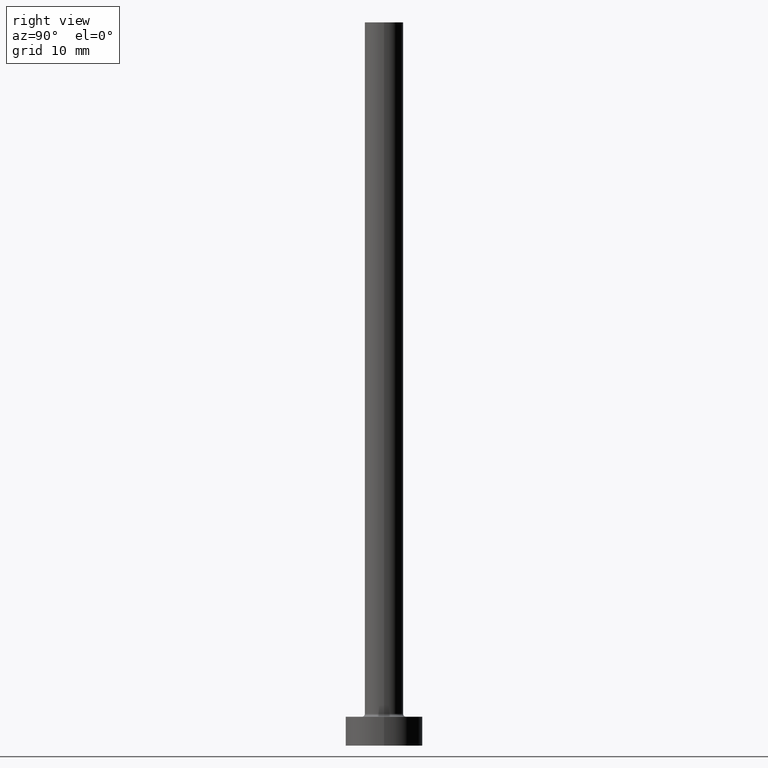
[diagram: clean part render]
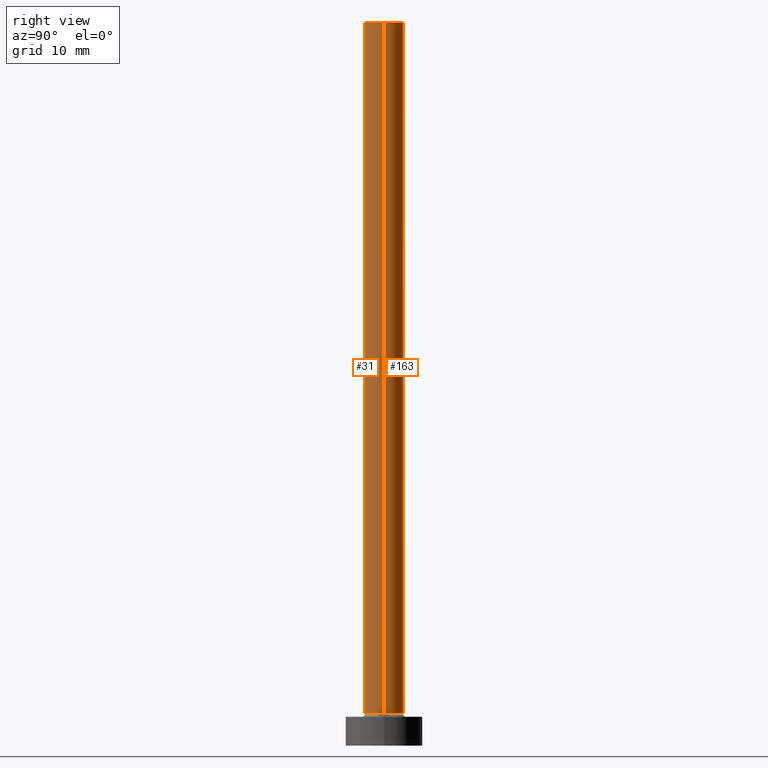
[diagram: same view with one multi-face feature highlighted, each face labeled with its STEP entity id]
A machine part, right view. The highlighted faces form ONE feature: a constant-radius fillet chain: 2 tangent blend faces with common blend radius 2 mm. The faces share edges in the B-rep.
Their STEP definitions:
[1] entity #31 (Cylinder):
#2 = DIRECTION ( 'NONE',  ( -0.000000000000000000, -0.000000000000000000, -1.000000000000000000 ) ) ;
#14 = CARTESIAN_POINT ( 'NONE',  ( 0.000000000000000000, 0.000000000000000000, 3.299999999999997158 ) ) ;
#18 = DIRECTION ( 'NONE',  ( -1.000000000000000000, 0.000000000000000000, 0.000000000000000000 ) ) ;
#31 = ADVANCED_FACE ( 'NONE', ( #210 ), #412, .T. ) ;
#33 = AXIS2_PLACEMENT_3D ( 'NONE', #376, #416, #18 ) ;
#40 = ORIENTED_EDGE ( 'NONE', *, *, #115, .T. ) ;
#47 = CARTESIAN_POINT ( 'NONE',  ( 0.000000000000000000, 0.000000000000000000, 75.00000000000000000 ) ) ;
#54 = ORIENTED_EDGE ( 'NONE', *, *, #358, .F. ) ;
#66 = CARTESIAN_POINT ( 'NONE',  ( -2.000000000000000000, 0.000000000000000000, 3.299999999999997158 ) ) ;
#83 = DIRECTION ( 'NONE',  ( 1.000000000000000000, 0.000000000000000000, 0.000000000000000000 ) ) ;
#115 = EDGE_CURVE ( 'NONE', #254, #124, #241, .T. ) ;
#124 = VERTEX_POINT ( 'NONE', #66 ) ;
#149 = AXIS2_PLACEMENT_3D ( 'NONE', #47, #189, #83 ) ;
#162 = ORIENTED_EDGE ( 'NONE', *, *, #289, .F. ) ;
#177 = CARTESIAN_POINT ( 'NONE',  ( 2.000000000000000000, 2.449293598294706414E-16, 3.299999999999997158 ) ) ;
#178 = VECTOR ( 'NONE', #2, 1000.000000000000000 ) ;
#189 = DIRECTION ( 'NONE',  ( 0.000000000000000000, 0.000000000000000000, 1.000000000000000000 ) ) ;
#200 = VERTEX_POINT ( 'NONE', #177 ) ;
#210 = FACE_OUTER_BOUND ( 'NONE', #257, .T. ) ;
#241 = LINE ( 'NONE', #380, #452 ) ;
#242 = LINE ( 'NONE', #284, #178 ) ;
#254 = VERTEX_POINT ( 'NONE', #319 ) ;
#257 = EDGE_LOOP ( 'NONE', ( #162, #54, #40, #429 ) ) ;
#284 = CARTESIAN_POINT ( 'NONE',  ( 2.000000000000000000, 2.449293598294706414E-16, 75.00000000000000000 ) ) ;
#289 = EDGE_CURVE ( 'NONE', #316, #200, #242, .T. ) ;
#294 = CIRCLE ( 'NONE', #149, 2.000000000000000000 ) ;
#315 = CIRCLE ( 'NONE', #406, 2.000000000000000000 ) ;
#316 = VERTEX_POINT ( 'NONE', #417 ) ;
#319 = CARTESIAN_POINT ( 'NONE',  ( -2.000000000000000000, 0.000000000000000000, 75.00000000000000000 ) ) ;
#321 = DIRECTION ( 'NONE',  ( 0.000000000000000000, 0.000000000000000000, 1.000000000000000000 ) ) ;
#325 = DIRECTION ( 'NONE',  ( 1.000000000000000000, 0.000000000000000000, 0.000000000000000000 ) ) ;
#345 = DIRECTION ( 'NONE',  ( -0.000000000000000000, -0.000000000000000000, -1.000000000000000000 ) ) ;
#358 = EDGE_CURVE ( 'NONE', #254, #316, #294, .T. ) ;
#376 = CARTESIAN_POINT ( 'NONE',  ( 0.000000000000000000, 0.000000000000000000, 75.00000000000000000 ) ) ;
#380 = CARTESIAN_POINT ( 'NONE',  ( -2.000000000000000000, 0.000000000000000000, 75.00000000000000000 ) ) ;
#406 = AXIS2_PLACEMENT_3D ( 'NONE', #14, #321, #325 ) ;
#412 = CYLINDRICAL_SURFACE ( 'NONE', #33, 2.000000000000000000 ) ;
#416 = DIRECTION ( 'NONE',  ( -0.000000000000000000, -0.000000000000000000, -1.000000000000000000 ) ) ;
#417 = CARTESIAN_POINT ( 'NONE',  ( 2.000000000000000000, 2.449293598294706414E-16, 75.00000000000000000 ) ) ;
#429 = ORIENTED_EDGE ( 'NONE', *, *, #440, .T. ) ;
#440 = EDGE_CURVE ( 'NONE', #124, #200, #315, .T. ) ;
#452 = VECTOR ( 'NONE', #345, 1000.000000000000000 ) ;
[2] entity #163 (Cylinder):
#2 = DIRECTION ( 'NONE',  ( -0.000000000000000000, -0.000000000000000000, -1.000000000000000000 ) ) ;
#19 = AXIS2_PLACEMENT_3D ( 'NONE', #77, #212, #183 ) ;
#48 = ORIENTED_EDGE ( 'NONE', *, *, #289, .T. ) ;
#59 = DIRECTION ( 'NONE',  ( 1.000000000000000000, 0.000000000000000000, 0.000000000000000000 ) ) ;
#66 = CARTESIAN_POINT ( 'NONE',  ( -2.000000000000000000, 0.000000000000000000, 3.299999999999997158 ) ) ;
#77 = CARTESIAN_POINT ( 'NONE',  ( 0.000000000000000000, 0.000000000000000000, 3.299999999999997158 ) ) ;
#107 = CIRCLE ( 'NONE', #363, 2.000000000000000000 ) ;
#115 = EDGE_CURVE ( 'NONE', #254, #124, #241, .T. ) ;
#118 = CIRCLE ( 'NONE', #19, 2.000000000000000000 ) ;
#124 = VERTEX_POINT ( 'NONE', #66 ) ;
#143 = EDGE_CURVE ( 'NONE', #316, #254, #107, .T. ) ;
#163 = ADVANCED_FACE ( 'NONE', ( #347 ), #171, .T. ) ;
#170 = DIRECTION ( 'NONE',  ( 0.000000000000000000, 0.000000000000000000, 1.000000000000000000 ) ) ;
#171 = CYLINDRICAL_SURFACE ( 'NONE', #377, 2.000000000000000000 ) ;
#177 = CARTESIAN_POINT ( 'NONE',  ( 2.000000000000000000, 2.449293598294706414E-16, 3.299999999999997158 ) ) ;
#178 = VECTOR ( 'NONE', #2, 1000.000000000000000 ) ;
#183 = DIRECTION ( 'NONE',  ( 1.000000000000000000, 0.000000000000000000, 0.000000000000000000 ) ) ;
#200 = VERTEX_POINT ( 'NONE', #177 ) ;
#209 = CARTESIAN_POINT ( 'NONE',  ( 0.000000000000000000, 0.000000000000000000, 75.00000000000000000 ) ) ;
#212 = DIRECTION ( 'NONE',  ( 0.000000000000000000, 0.000000000000000000, 1.000000000000000000 ) ) ;
#222 = EDGE_LOOP ( 'NONE', ( #336, #48, #405, #367 ) ) ;
#236 = EDGE_CURVE ( 'NONE', #200, #124, #118, .T. ) ;
#241 = LINE ( 'NONE', #380, #452 ) ;
#242 = LINE ( 'NONE', #284, #178 ) ;
#254 = VERTEX_POINT ( 'NONE', #319 ) ;
#277 = DIRECTION ( 'NONE',  ( -0.000000000000000000, -0.000000000000000000, -1.000000000000000000 ) ) ;
#284 = CARTESIAN_POINT ( 'NONE',  ( 2.000000000000000000, 2.449293598294706414E-16, 75.00000000000000000 ) ) ;
#289 = EDGE_CURVE ( 'NONE', #316, #200, #242, .T. ) ;
#301 = DIRECTION ( 'NONE',  ( -1.000000000000000000, 0.000000000000000000, 0.000000000000000000 ) ) ;
#316 = VERTEX_POINT ( 'NONE', #417 ) ;
#319 = CARTESIAN_POINT ( 'NONE',  ( -2.000000000000000000, 0.000000000000000000, 75.00000000000000000 ) ) ;
#336 = ORIENTED_EDGE ( 'NONE', *, *, #143, .F. ) ;
#345 = DIRECTION ( 'NONE',  ( -0.000000000000000000, -0.000000000000000000, -1.000000000000000000 ) ) ;
#347 = FACE_OUTER_BOUND ( 'NONE', #222, .T. ) ;
#363 = AXIS2_PLACEMENT_3D ( 'NONE', #209, #170, #59 ) ;
#367 = ORIENTED_EDGE ( 'NONE', *, *, #115, .F. ) ;
#377 = AXIS2_PLACEMENT_3D ( 'NONE', #454, #277, #301 ) ;
#380 = CARTESIAN_POINT ( 'NONE',  ( -2.000000000000000000, 0.000000000000000000, 75.00000000000000000 ) ) ;
#405 = ORIENTED_EDGE ( 'NONE', *, *, #236, .T. ) ;
#417 = CARTESIAN_POINT ( 'NONE',  ( 2.000000000000000000, 2.449293598294706414E-16, 75.00000000000000000 ) ) ;
#452 = VECTOR ( 'NONE', #345, 1000.000000000000000 ) ;
#454 = CARTESIAN_POINT ( 'NONE',  ( 0.000000000000000000, 0.000000000000000000, 75.00000000000000000 ) ) ;